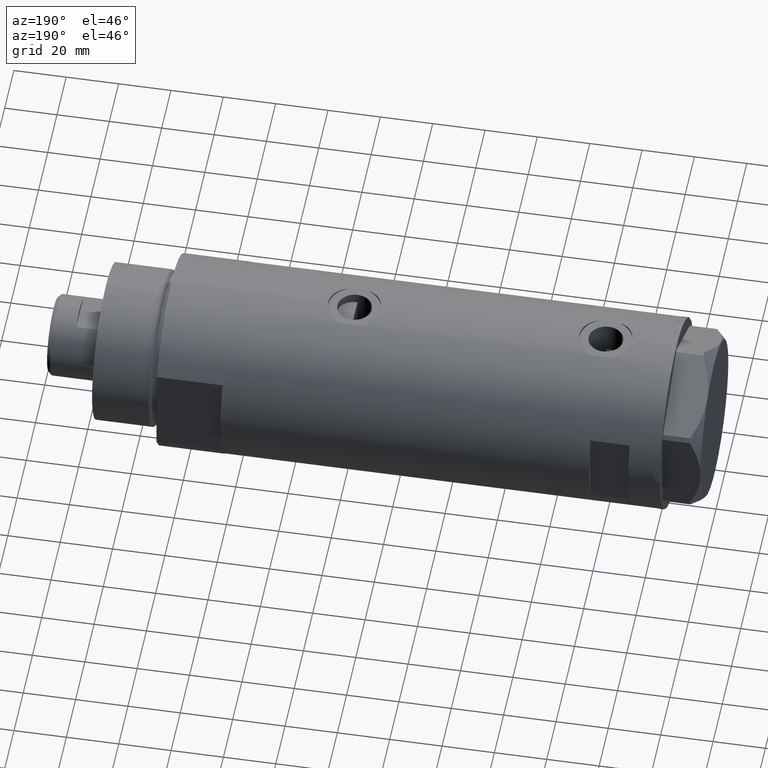
[diagram: clean part render]
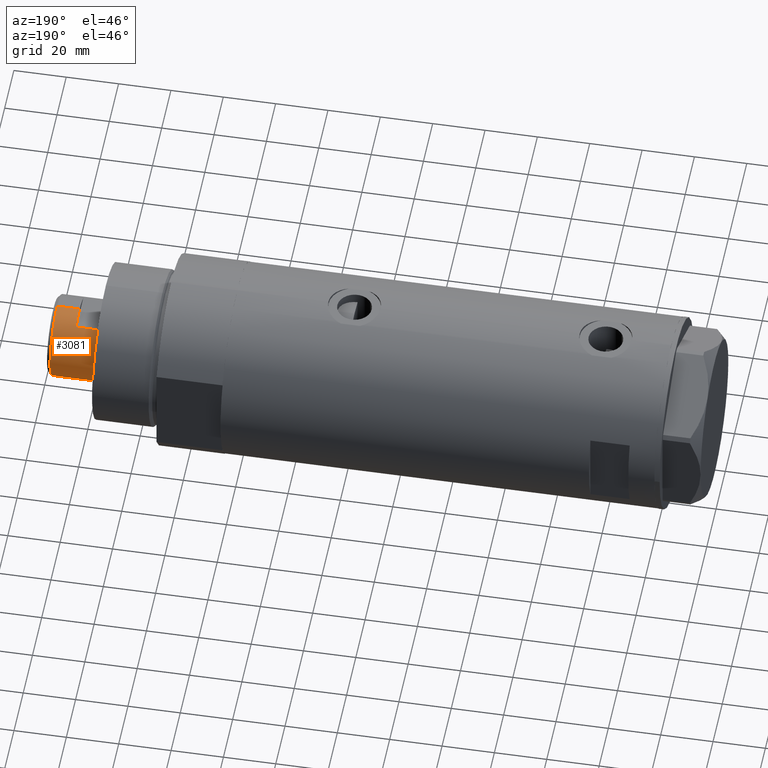
[diagram: same view with one face highlighted and labeled with its STEP entity id]
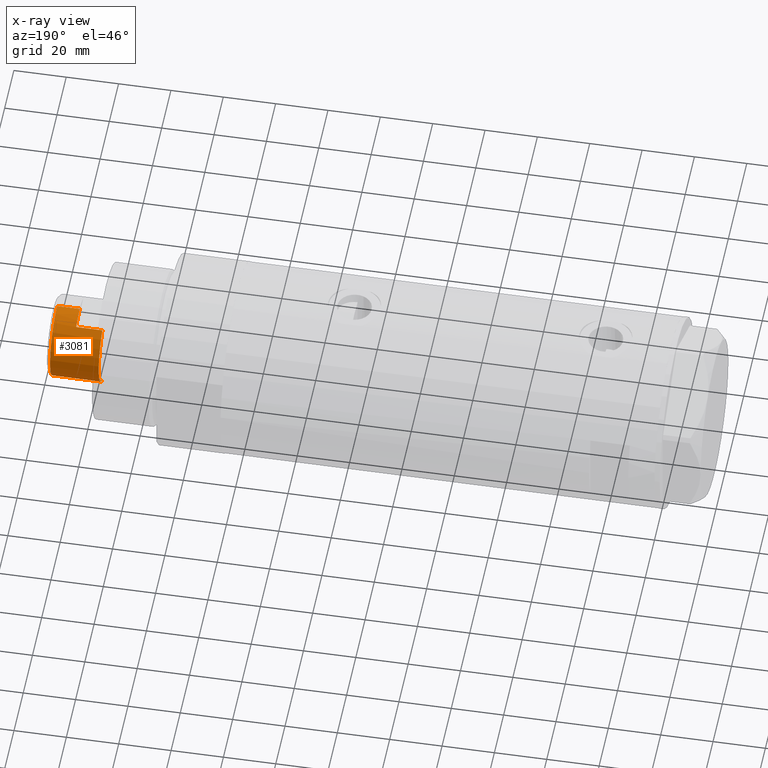
[diagram: x-ray of the same camera — body ghosted, the highlighted face saturated]
A machine part, auxiliary view. The second image highlights one B-rep face of the part: STEP entity #3081.
The next image is the same camera in x-ray: the body ghosted, the highlighted face saturated — about 0% of this face is hidden behind the body in this view.
In plain terms, the highlighted cylindrical surface (partial cylindrical patch) has radius 15.5 mm, axis along (-1, -0, 0).
Its self-contained STEP definition (entity closure, byte-faithful):
#53 = CARTESIAN_POINT ( 'NONE',  ( 0.000000000000000000, 0.000000000000000000, 208.5999999999999659 ) ) ;
#93 = CARTESIAN_POINT ( 'NONE',  ( 13.48630416385452868, 7.639999999999997904, 200.0000000000000000 ) ) ;
#101 = DIRECTION ( 'NONE',  ( 1.000000000000000000, 0.000000000000000000, 0.000000000000000000 ) ) ;
#111 = VERTEX_POINT ( 'NONE', #3846 ) ;
#137 = VERTEX_POINT ( 'NONE', #4172 ) ;
#257 = AXIS2_PLACEMENT_3D ( 'NONE', #1328, #1718, #3106 ) ;
#320 = EDGE_CURVE ( 'NONE', #2270, #3299, #2298, .T. ) ;
#343 = CIRCLE ( 'NONE', #3889, 15.50000000000000000 ) ;
#345 = DIRECTION ( 'NONE',  ( -0.000000000000000000, -0.000000000000000000, -1.000000000000000000 ) ) ;
#389 = VERTEX_POINT ( 'NONE', #3339 ) ;
#442 = ORIENTED_EDGE ( 'NONE', *, *, #1103, .T. ) ;
#463 = EDGE_LOOP ( 'NONE', ( #1233, #1885, #442, #2850, #2840, #1506, #1174, #822 ) ) ;
#592 = LINE ( 'NONE', #2859, #3399 ) ;
#710 = LINE ( 'NONE', #93, #3540 ) ;
#815 = DIRECTION ( 'NONE',  ( 0.000000000000000000, 0.000000000000000000, 1.000000000000000000 ) ) ;
#822 = ORIENTED_EDGE ( 'NONE', *, *, #3412, .F. ) ;
#1103 = EDGE_CURVE ( 'NONE', #137, #1426, #343, .T. ) ;
#1128 = CARTESIAN_POINT ( 'NONE',  ( 15.49999999999999822, 1.898202538678397163E-15, 200.0000000000000000 ) ) ;
#1174 = ORIENTED_EDGE ( 'NONE', *, *, #320, .T. ) ;
#1199 = VERTEX_POINT ( 'NONE', #3660 ) ;
#1233 = ORIENTED_EDGE ( 'NONE', *, *, #2847, .T. ) ;
#1328 = CARTESIAN_POINT ( 'NONE',  ( 0.000000000000000000, 0.000000000000000000, 200.0000000000000000 ) ) ;
#1370 = AXIS2_PLACEMENT_3D ( 'NONE', #3414, #3029, #3365 ) ;
#1426 = VERTEX_POINT ( 'NONE', #3138 ) ;
#1439 = CIRCLE ( 'NONE', #3969, 15.49999999999999822 ) ;
#1473 = CARTESIAN_POINT ( 'NONE',  ( 0.000000000000000000, 0.000000000000000000, 200.0000000000000000 ) ) ;
#1506 = ORIENTED_EDGE ( 'NONE', *, *, #4342, .F. ) ;
#1527 = CARTESIAN_POINT ( 'NONE',  ( -15.50000000000000178, 0.000000000000000000, 200.0000000000000000 ) ) ;
#1606 = VERTEX_POINT ( 'NONE', #1797 ) ;
#1679 = CYLINDRICAL_SURFACE ( 'NONE', #1370, 15.49999999999999822 ) ;
#1718 = DIRECTION ( 'NONE',  ( 0.000000000000000000, 0.000000000000000000, 1.000000000000000000 ) ) ;
#1754 = CARTESIAN_POINT ( 'NONE',  ( 0.000000000000000000, 0.000000000000000000, 190.0000000000000000 ) ) ;
#1797 = CARTESIAN_POINT ( 'NONE',  ( -15.49999999999999822, 0.000000000000000000, 208.5999999999999659 ) ) ;
#1800 = DIRECTION ( 'NONE',  ( 0.000000000000000000, 0.000000000000000000, -1.000000000000000000 ) ) ;
#1809 = VECTOR ( 'NONE', #2188, 1000.000000000000000 ) ;
#1885 = ORIENTED_EDGE ( 'NONE', *, *, #2894, .T. ) ;
#1951 = VECTOR ( 'NONE', #3189, 1000.000000000000000 ) ;
#1974 = EDGE_CURVE ( 'NONE', #1426, #1199, #710, .T. ) ;
#2188 = DIRECTION ( 'NONE',  ( -0.000000000000000000, -0.000000000000000000, -1.000000000000000000 ) ) ;
#2270 = VERTEX_POINT ( 'NONE', #3800 ) ;
#2298 = CIRCLE ( 'NONE', #257, 15.50000000000000000 ) ;
#2513 = DIRECTION ( 'NONE',  ( -0.000000000000000000, -0.000000000000000000, -1.000000000000000000 ) ) ;
#2527 = LINE ( 'NONE', #3890, #1809 ) ;
#2543 = CIRCLE ( 'NONE', #3682, 15.49999999999995737 ) ;
#2784 = EDGE_CURVE ( 'NONE', #1199, #389, #2543, .T. ) ;
#2804 = DIRECTION ( 'NONE',  ( 1.000000000000000000, 0.000000000000000000, 0.000000000000000000 ) ) ;
#2840 = ORIENTED_EDGE ( 'NONE', *, *, #2784, .T. ) ;
#2847 = EDGE_CURVE ( 'NONE', #1606, #111, #1439, .T. ) ;
#2850 = ORIENTED_EDGE ( 'NONE', *, *, #1974, .T. ) ;
#2859 = CARTESIAN_POINT ( 'NONE',  ( -15.49999999999999822, 0.000000000000000000, 200.0000000000000000 ) ) ;
#2869 = DIRECTION ( 'NONE',  ( 0.000000000000000000, 0.000000000000000000, 1.000000000000000000 ) ) ;
#2894 = EDGE_CURVE ( 'NONE', #111, #137, #4276, .T. ) ;
#3029 = DIRECTION ( 'NONE',  ( -0.000000000000000000, -0.000000000000000000, -1.000000000000000000 ) ) ;
#3071 = FACE_OUTER_BOUND ( 'NONE', #463, .T. ) ;
#3081 = ADVANCED_FACE ( 'NONE', ( #3071 ), #1679, .T. ) ;
#3106 = DIRECTION ( 'NONE',  ( 1.000000000000000000, 0.000000000000000000, 0.000000000000000000 ) ) ;
#3138 = CARTESIAN_POINT ( 'NONE',  ( 13.48630416385452868, 7.639999999999997904, 200.0000000000000000 ) ) ;
#3189 = DIRECTION ( 'NONE',  ( -0.000000000000000000, -0.000000000000000000, -1.000000000000000000 ) ) ;
#3240 = DIRECTION ( 'NONE',  ( 1.000000000000000000, 0.000000000000000000, 0.000000000000000000 ) ) ;
#3299 = VERTEX_POINT ( 'NONE', #1527 ) ;
#3339 = CARTESIAN_POINT ( 'NONE',  ( -13.48630416385452513, 7.639999999999917968, 190.0000000000000000 ) ) ;
#3365 = DIRECTION ( 'NONE',  ( -1.000000000000000000, 0.000000000000000000, 0.000000000000000000 ) ) ;
#3399 = VECTOR ( 'NONE', #345, 1000.000000000000000 ) ;
#3412 = EDGE_CURVE ( 'NONE', #1606, #3299, #592, .T. ) ;
#3414 = CARTESIAN_POINT ( 'NONE',  ( 0.000000000000000000, 0.000000000000000000, 200.0000000000000000 ) ) ;
#3540 = VECTOR ( 'NONE', #2513, 1000.000000000000000 ) ;
#3660 = CARTESIAN_POINT ( 'NONE',  ( 13.48630416385452868, 7.639999999999997904, 190.0000000000000000 ) ) ;
#3682 = AXIS2_PLACEMENT_3D ( 'NONE', #1754, #2869, #2804 ) ;
#3800 = CARTESIAN_POINT ( 'NONE',  ( -13.48630416385452868, 7.639999999999998792, 200.0000000000000000 ) ) ;
#3846 = CARTESIAN_POINT ( 'NONE',  ( 15.49999999999999822, 1.898202538678397163E-15, 208.5999999999999659 ) ) ;
#3889 = AXIS2_PLACEMENT_3D ( 'NONE', #1473, #815, #3240 ) ;
#3890 = CARTESIAN_POINT ( 'NONE',  ( -13.48630416385452868, 7.639999999999998792, 200.0000000000000000 ) ) ;
#3969 = AXIS2_PLACEMENT_3D ( 'NONE', #53, #1800, #101 ) ;
#4172 = CARTESIAN_POINT ( 'NONE',  ( 15.50000000000000178, 1.898202538678397557E-15, 200.0000000000000000 ) ) ;
#4276 = LINE ( 'NONE', #1128, #1951 ) ;
#4342 = EDGE_CURVE ( 'NONE', #2270, #389, #2527, .T. ) ;